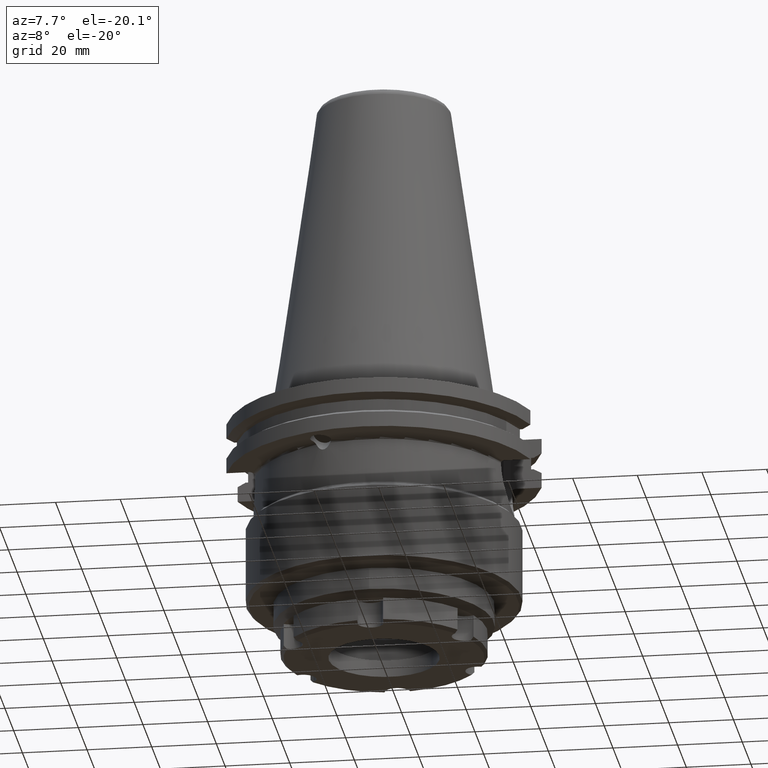
[diagram: clean part render]
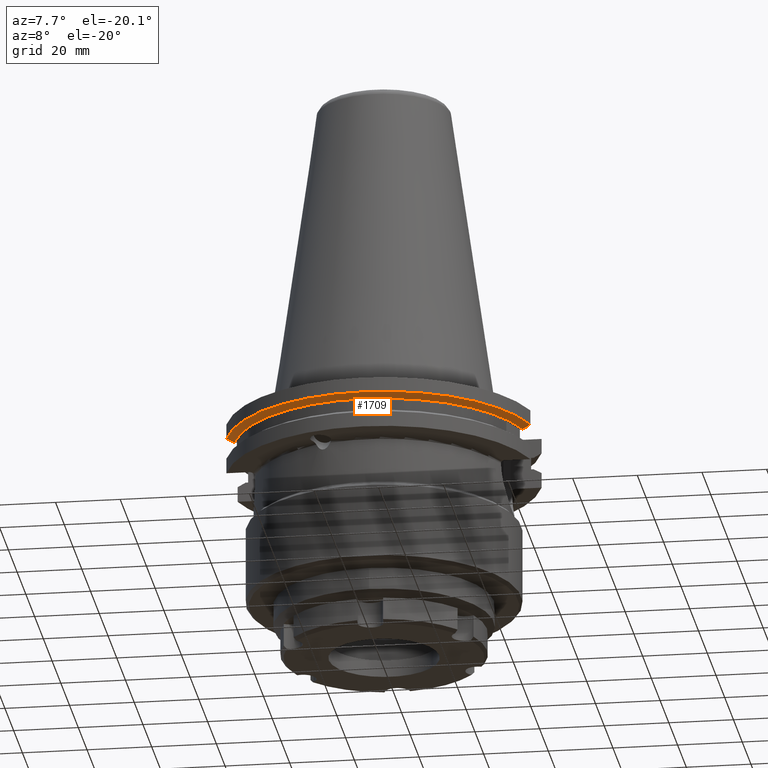
[diagram: same view with one face highlighted and labeled with its STEP entity id]
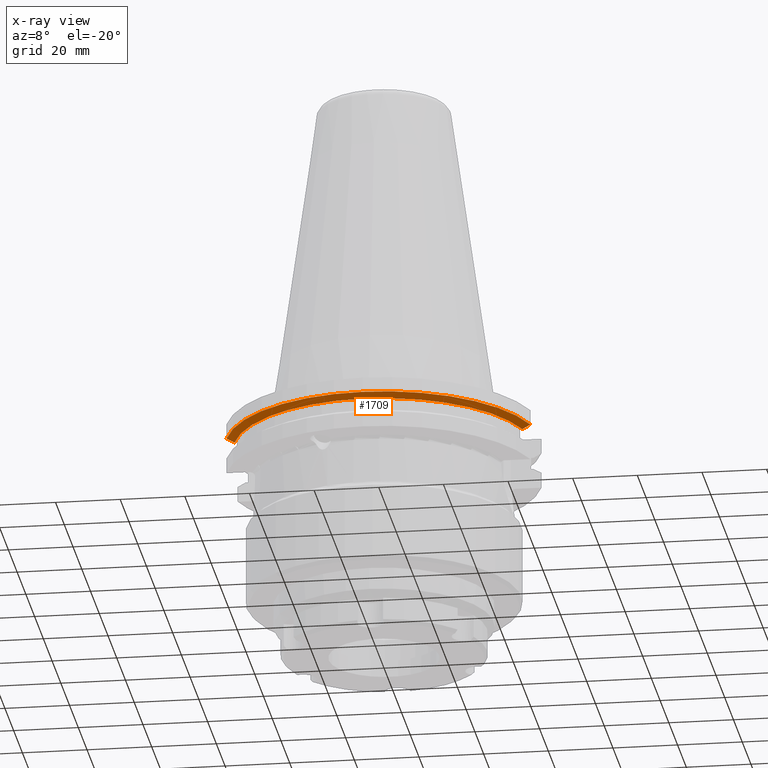
[diagram: x-ray of the same camera — body ghosted, the highlighted face saturated]
A machine part, auxiliary view. The second image highlights one B-rep face of the part: STEP entity #1709.
The next image is the same camera in x-ray: the body ghosted, the highlighted face saturated — about 0% of this face is hidden behind the body in this view.
In plain terms, the highlighted conical surface has half-angle 60 deg.
Its self-contained STEP definition (entity closure, byte-faithful):
#42=CONICAL_SURFACE('',#1892,46.3747448887957,1.0471975511966);
#288=B_SPLINE_CURVE_WITH_KNOTS('',3,(#2923,#2924,#2925,#2926),
 .UNSPECIFIED.,.F.,.F.,(4,4),(0.0178981586960646,0.0207206548456632),
 .UNSPECIFIED.);
#289=B_SPLINE_CURVE_WITH_KNOTS('',3,(#2930,#2931,#2932,#2933),
 .UNSPECIFIED.,.F.,.F.,(4,4),(0.0150090466185369,0.0178316206066893),
 .UNSPECIFIED.);
#616=ORIENTED_EDGE('',*,*,#996,.F.);
#617=ORIENTED_EDGE('',*,*,#998,.T.);
#618=ORIENTED_EDGE('',*,*,#999,.T.);
#619=ORIENTED_EDGE('',*,*,#1000,.T.);
#996=EDGE_CURVE('',#1194,#1195,#1313,.T.);
#998=EDGE_CURVE('',#1194,#1196,#288,.T.);
#999=EDGE_CURVE('',#1196,#1197,#1314,.T.);
#1000=EDGE_CURVE('',#1197,#1195,#289,.T.);
#1194=VERTEX_POINT('',#2918);
#1195=VERTEX_POINT('',#2920);
#1196=VERTEX_POINT('',#2927);
#1197=VERTEX_POINT('',#2929);
#1313=CIRCLE('',#1891,46.3747448887957);
#1314=CIRCLE('',#1893,48.75);
#1413=EDGE_LOOP('',(#616,#617,#618,#619));
#1541=FACE_BOUND('',#1413,.T.);
#1709=ADVANCED_FACE('',(#1541),#42,.T.);
#1891=AXIS2_PLACEMENT_3D('',#2919,#2284,#2285);
#1892=AXIS2_PLACEMENT_3D('',#2922,#2287,#2288);
#1893=AXIS2_PLACEMENT_3D('',#2928,#2289,#2290);
#2284=DIRECTION('',(0.,2.22044604925031E-16,-1.));
#2285=DIRECTION('',(-1.,0.,0.));
#2287=DIRECTION('',(0.,-2.22044604925031E-16,1.));
#2288=DIRECTION('',(1.,0.,0.));
#2289=DIRECTION('',(0.,2.22044604925031E-16,-1.));
#2290=DIRECTION('',(-1.,0.,0.));
#2918=CARTESIAN_POINT('',(44.5588875927225,-12.85,-9.22375891365622));
#2919=CARTESIAN_POINT('',(0.,2.04808590390653E-15,-9.22375891365622));
#2920=CARTESIAN_POINT('',(-44.5588875927225,-12.85,-9.22375891365622));
#2922=CARTESIAN_POINT('',(0.,2.04808590390653E-15,-9.22375891365622));
#2923=CARTESIAN_POINT('',(44.5588875927225,-12.85,-9.22375891365622));
#2924=CARTESIAN_POINT('',(45.3816279977281,-12.85,-8.76734906693907));
#2925=CARTESIAN_POINT('',(46.2039634008729,-12.85,-8.31019570346604));
#2926=CARTESIAN_POINT('',(47.025950282796,-12.85,-7.85240473580835));
#2927=CARTESIAN_POINT('',(47.025950282796,-12.85,-7.85240473580835));
#2928=CARTESIAN_POINT('',(0.,1.74358410727401E-15,-7.85240473580835));
#2929=CARTESIAN_POINT('',(-47.025950282796,-12.85,-7.85240473580835));
#2930=CARTESIAN_POINT('',(-47.025950282796,-12.85,-7.85240473580836));
#2931=CARTESIAN_POINT('',(-46.2039699110152,-12.85,-8.31019207775815));
#2932=CARTESIAN_POINT('',(-45.3816314955782,-12.85,-8.76734712652964));
#2933=CARTESIAN_POINT('',(-44.5588875927225,-12.85,-9.22375891365623));